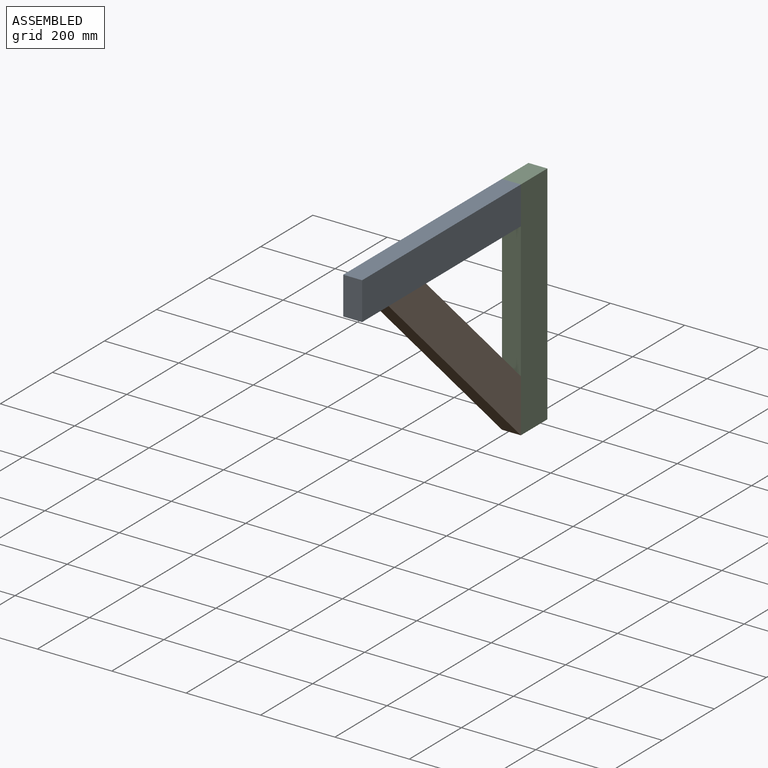
[diagram: assembled view]
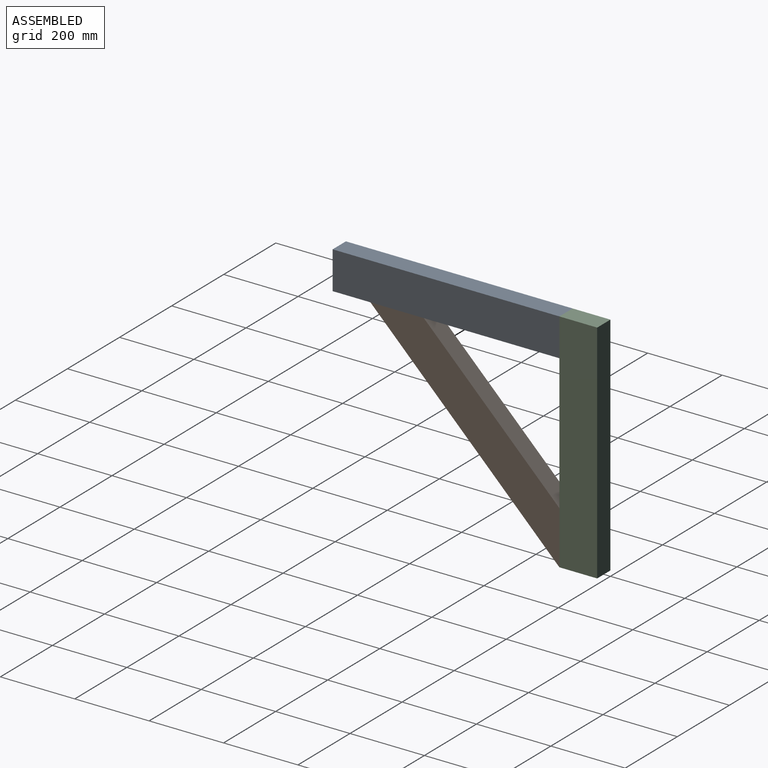
[diagram: assembled view, second angle]
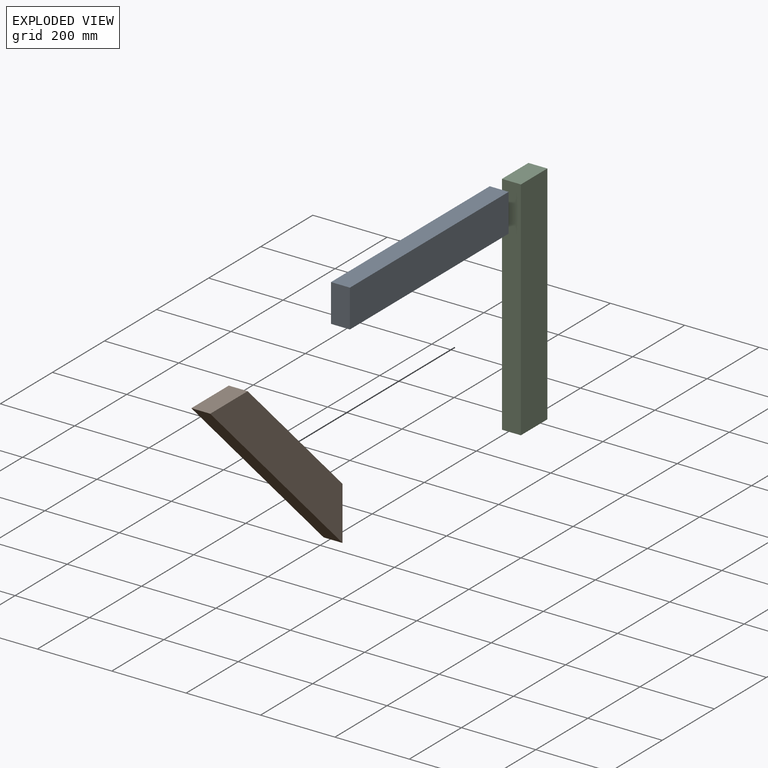
[diagram: exploded view]
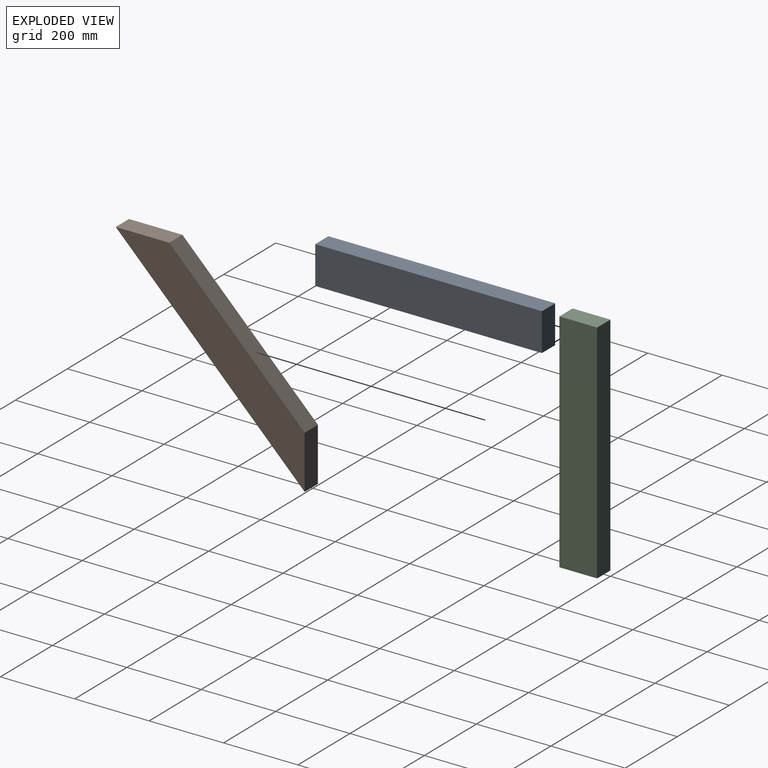
[diagram: exploded view, second angle]
ASSEMBLY  parts=3 mates=2
PART A: 6 faces, bbox 50.8x609.6x101.6 mm
  f0: plane 101.6x50.8mm, normal (0,1,0), area 5161.3mm2, adj f1,f3,f4,f5
  f1: plane 609.6x50.8mm, normal (0,0,1), area 30967.7mm2, adj f0,f2,f4,f5
  f2: plane 101.6x50.8mm, normal (0,-1,0), area 5161.3mm2, adj f1,f3,f4,f5
  f3: plane 609.6x50.8mm, normal (0,0,-1), area 30967.7mm2, adj f0,f2,f4,f5
  f4: plane 609.6x101.6mm, normal (1,0,0), area 61935.4mm2, adj f0,f1,f2,f3
  f5: plane 609.6x101.6mm, normal (-1,0,0), area 61935.4mm2, adj f0,f1,f2,f3
PART B: 6 faces, bbox 50.8x508x508 mm
  f0: plane 364.32x364.32mm, normal (0,0.71,0.71), area 26173.2mm2, adj f1,f3,f4,f5
  f1: plane 143.68x50.8mm, normal (0,0,1), area 7299.2mm2, adj f0,f2,f4,f5
  f2: plane 508x508mm, normal (0,-0.71,-0.71), area 36495.8mm2, adj f1,f3,f4,f5
  f3: plane 143.68x50.8mm, normal (0,1,0), area 7299.2mm2, adj f0,f2,f4,f5
  f4: plane 508x508mm, normal (1,0,0), area 62669mm2, adj f0,f1,f2,f3
  f5: plane 508x508mm, normal (-1,0,0), area 62669mm2, adj f0,f1,f2,f3
PART C: same geometry as A
PLACE A t=(0,-50.8,50.8)mm
PLACE B rot(axis=(1,0,0),0deg) t=(0,-50.8,50.8)mm
PLACE C rot(axis=(-1,0,0),90deg) t=(0,-304.8,-304.8)mm
MATE fastened B.f3 <-> C.f3  axis (0,1,0) through (25.4,-101.6,-254)mm
MATE fastened C.f3 <-> A.f0  axis (0,-1,0) through (50.8,-101.6,355.6)mm
